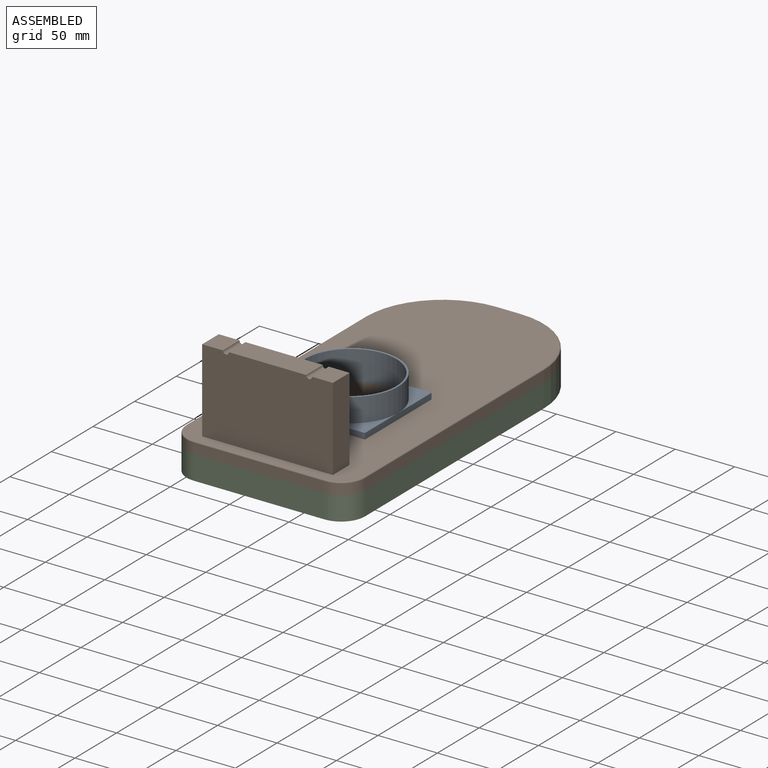
[diagram: assembled view]
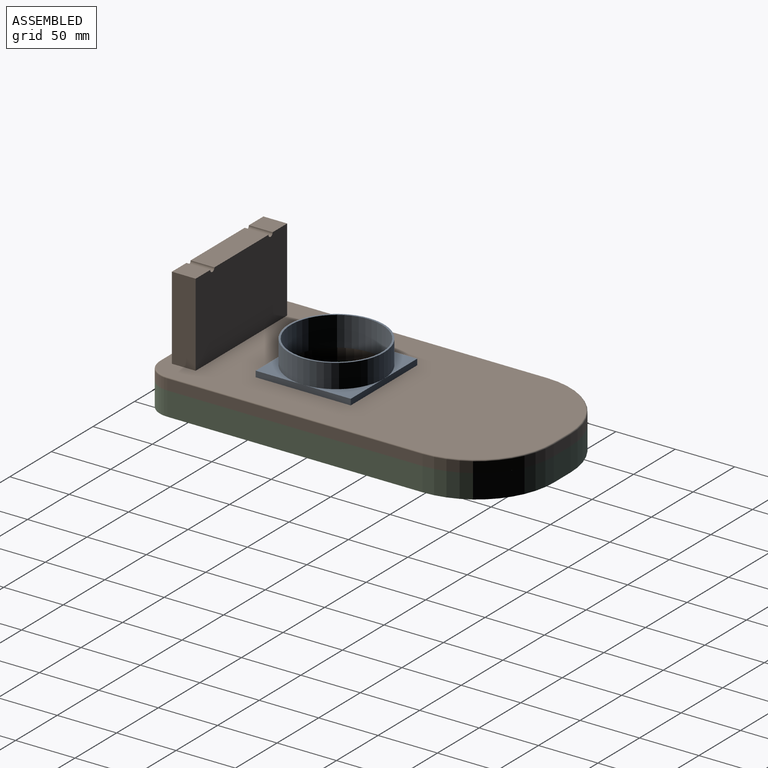
[diagram: assembled view, second angle]
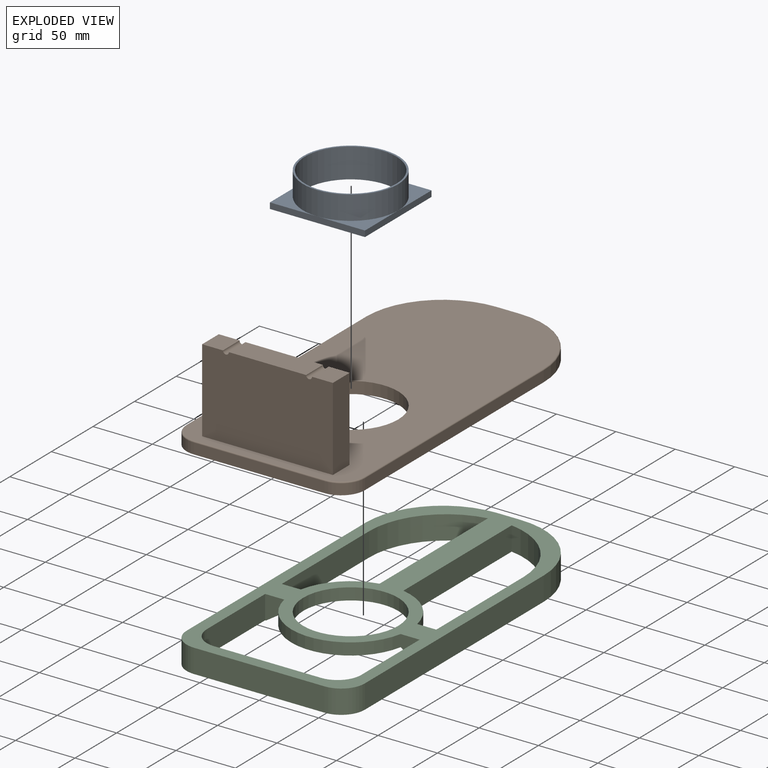
[diagram: exploded view]
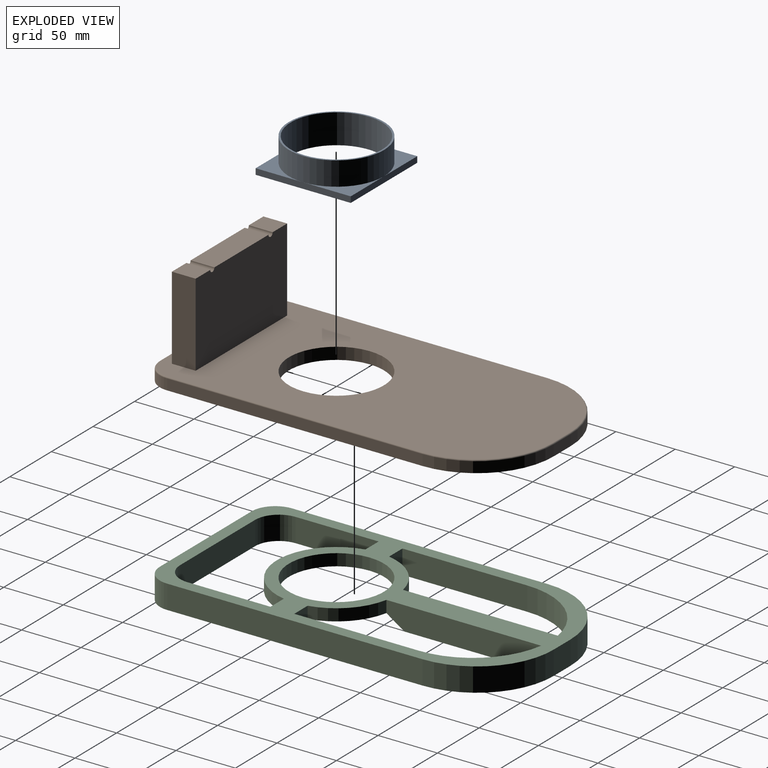
[diagram: exploded view, second angle]
ASSEMBLY  parts=3 mates=2
PART A: 12 faces, bbox 80x80x25 mm
  f0: cylinder r=38.5mm len=77mm, axis (0,0,-1), area 6047.6mm2, adj f2,f11
  f1: cylinder r=40mm len=80mm, axis (0,0,-1), area 5026.5mm2, adj f2,f3,f4,f5,f6
  f2: plane 80x80mm, normal (0,0,1), area 369.9mm2, adj f0,f1
  f3: plane 40x40mm, normal (0,0,1), area 343.4mm2, adj f1,f8,f9
  f4: plane 40x40mm, normal (0,0,1), area 343.4mm2, adj f1,f9,f10
  f5: plane 40x40mm, normal (0,0,1), area 343.4mm2, adj f1,f7,f10
  f6: plane 40x40mm, normal (0,0,1), area 343.4mm2, adj f1,f7,f8
  f7: plane 80x5mm, normal (0,-1,0), area 400mm2, adj f5,f6,f8,f10,f11
  f8: plane 80x5mm, normal (1,0,0), area 400mm2, adj f3,f6,f7,f9,f11
  f9: plane 80x5mm, normal (0,1,0), area 400mm2, adj f3,f4,f8,f10,f11
  f10: plane 80x5mm, normal (-1,0,0), area 400mm2, adj f4,f5,f7,f9,f11
  f11: plane 80x80mm, normal (0,0,-1), area 1743.4mm2, adj f0,f7,f8,f9,f10
PART B: 28 faces, bbox 160.7x307x80 mm
  f0: plane 65x20mm, normal (0,0,1), area 1300mm2, adj f23,f25,f26,f27
  f1: plane 20x17.5mm, normal (0,0,1), area 350mm2, adj f23,f24,f25,f27
  f2: plane 20x17.5mm, normal (0,0,1), area 350mm2, adj f22,f23,f25,f26
  f3: plane 215x9mm, normal (1,0,0), area 1935mm2, adj f4,f11,f13,f14
  f4: cylinder r=65mm len=65mm, axis (0,0,-1), area 918.9mm2, adj f3,f5,f13,f15
  f5: plane 20x9mm, normal (0,1,0), area 180mm2, adj f4,f6,f13,f17
  f6: cylinder r=65mm len=65mm, axis (0,0,-1), area 918.9mm2, adj f5,f7,f13,f19
  f7: plane 215x9mm, normal (-1,0,0), area 1935mm2, adj f6,f8,f13,f21
  f8: cylinder r=20mm len=20mm, axis (0,0,-1), area 282.7mm2, adj f7,f9,f13,f20
  f9: plane 110x9mm, normal (0,-1,0), area 990mm2, adj f8,f11,f13,f18
  f10: cylinder r=40mm len=80mm, axis (0,0,-1), area 2513.3mm2, adj f12,f13
  f11: cylinder r=20mm len=20mm, axis (0,0,-1), area 282.7mm2, adj f3,f9,f13,f16
  f12: plane 298x148mm, normal (0,0,1), area 34964.5mm2, adj f10,f14,f15,f16,f17,f18,f19,f20
  f13: plane 300x150mm, normal (0,0,-1), area 37988.4mm2, adj f3,f4,f5,f6,f7,f8,f9,f10
  f14: cylinder r=1mm len=215mm, axis (0,-1,0), area 337.7mm2, adj f3,f12,f15,f16
  f15: torus R=64mm, axis (0,0,1), area 159.5mm2, adj f4,f12,f14,f17
  f16: torus R=19mm, axis (0,0,1), area 48.5mm2, adj f11,f12,f14,f18
  f17: cylinder r=1mm len=20mm, axis (1,0,0), area 31.4mm2, adj f5,f12,f15,f19
  f18: cylinder r=1mm len=110mm, axis (-1,0,0), area 172.8mm2, adj f9,f12,f16,f20
  f19: torus R=64mm, axis (0,0,1), area 159.5mm2, adj f6,f12,f17,f21
  f20: torus R=19mm, axis (0,0,1), area 48.5mm2, adj f8,f12,f18,f21
  f21: cylinder r=1mm len=215mm, axis (0,1,0), area 337.7mm2, adj f7,f12,f19,f20
  f22: plane 70x20mm, normal (1,0,0), area 1400mm2, adj f2,f12,f23,f25
  f23: plane 110x70mm, normal (0,1,0), area 7680.4mm2, adj f0,f1,f2,f12,f22,f24,f26,f27
  f24: plane 70x20mm, normal (-1,0,0), area 1400mm2, adj f1,f12,f23,f25
  f25: plane 110x70mm, normal (0,-1,0), area 7680.4mm2, adj f0,f1,f2,f12,f22,f24,f26,f27
  f26: cylinder r=2.5mm len=20mm, axis (0,1,0), area 157.1mm2, adj f0,f2,f23,f25
  f27: cylinder r=2.5mm len=20mm, axis (0,1,0), area 157.1mm2, adj f0,f1,f23,f25
PART C: 33 faces, bbox 150.4x300.4x20.4 mm
  f0: cylinder r=50mm len=97.98mm, axis (0,0,1), area 1369.4mm2, adj f11,f12,f28,f29
  f1: cylinder r=50mm len=38.99mm, axis (0,0,1), area 584mm2, adj f18,f23,f28,f29
  f2: cylinder r=50mm len=38.99mm, axis (0,0,1), area 584mm2, adj f21,f25,f28,f29
  f3: plane 215x20mm, normal (1,0,0), area 4300mm2, adj f4,f26,f27,f28
  f4: cylinder r=65mm len=65mm, axis (0,0,1), area 2042mm2, adj f3,f5,f27,f28
  f5: plane 20x20mm, normal (0,1,0), area 400mm2, adj f4,f6,f27,f28
  f6: cylinder r=65mm len=65mm, axis (0,0,1), area 2042mm2, adj f5,f7,f27,f28
  f7: plane 215x20mm, normal (-1,0,0), area 4300mm2, adj f6,f8,f27,f28
  f8: cylinder r=20mm len=20mm, axis (0,0,1), area 628.3mm2, adj f7,f9,f27,f28
  f9: plane 110x20mm, normal (0,-1,0), area 2200mm2, adj f8,f26,f27,f28
  f10: plane 70x20mm, normal (1,0,0), area 1400mm2, adj f11,f22,f27,f28
  f11: plane 20.35x16.36mm, normal (0,-1,0), area 243.9mm2, adj f0,f10,f27,f28,f31
  f12: plane 20.35x16.36mm, normal (0,-1,0), area 243.9mm2, adj f0,f13,f27,f28,f30
  f13: plane 70x20mm, normal (-1,0,0), area 1400mm2, adj f12,f14,f27,f28
  f14: cylinder r=20mm len=20mm, axis (0,0,1), area 628.3mm2, adj f13,f15,f27,f28
  f15: plane 90x20mm, normal (0,1,0), area 1800mm2, adj f14,f22,f27,f28
  f16: plane 105x20mm, normal (1,0,0), area 2100mm2, adj f17,f23,f27,f28
  f17: cylinder r=65mm len=64.23mm, axis (0,0,1), area 1841.2mm2, adj f16,f18,f27,f28
  f18: plane 130.59x20.35mm, normal (-1,0,0), area 2528.4mm2, adj f1,f17,f27,f28,f32
  f19: cylinder r=65mm len=64.23mm, axis (0,0,1), area 1841.2mm2, adj f20,f25,f27,f28
  f20: plane 105x20mm, normal (-1,0,0), area 2100mm2, adj f19,f21,f27,f28
  f21: plane 20.35x16.36mm, normal (0,1,0), area 243.9mm2, adj f2,f20,f27,f28,f30
  f22: cylinder r=20mm len=20mm, axis (0,0,1), area 628.3mm2, adj f10,f15,f27,f28
  f23: plane 20.35x16.36mm, normal (0,1,0), area 243.9mm2, adj f1,f16,f27,f28,f31
  f24: cylinder r=40mm len=80mm, axis (0,0,1), area 2513.3mm2, adj f28,f29
  f25: plane 130.59x20.35mm, normal (1,0,0), area 2528.4mm2, adj f2,f19,f27,f28,f32
  f26: cylinder r=20mm len=20mm, axis (0,0,1), area 628.3mm2, adj f3,f9,f27,f28
  f27: plane 300x150mm, normal (0,0,-1), area 10910.3mm2, adj f3,f4,f5,f6,f7,f8,f9,f10
  f28: plane 300x150mm, normal (0,0,1), area 14642.4mm2, adj f0,f1,f2,f3,f4,f5,f6,f7
  f29: plane 100x100mm, normal (0,0,-1), area 2827.4mm2, adj f0,f1,f2,f24,f30,f31,f32
  f30: cone r=65mm half-angle=56.3deg, axis (0,0,-1), area 366.7mm2, adj f12,f21,f27,f29
  f31: cone r=65mm half-angle=56.3deg, axis (0,0,-1), area 366.7mm2, adj f11,f23,f27,f29
  f32: cone r=65mm half-angle=56.3deg, axis (0,0,-1), area 366.7mm2, adj f18,f25,f27,f29
PLACE A t=(0,-40,15)mm
PLACE B at identity fixed
PLACE C at identity
MATE fastened A.f0 <-> B.f10  axis (0,0,-1) through (0,-40,10)mm
MATE fastened C.f0 <-> B.f10  axis (0,0,1) through (0,-40,0)mm
